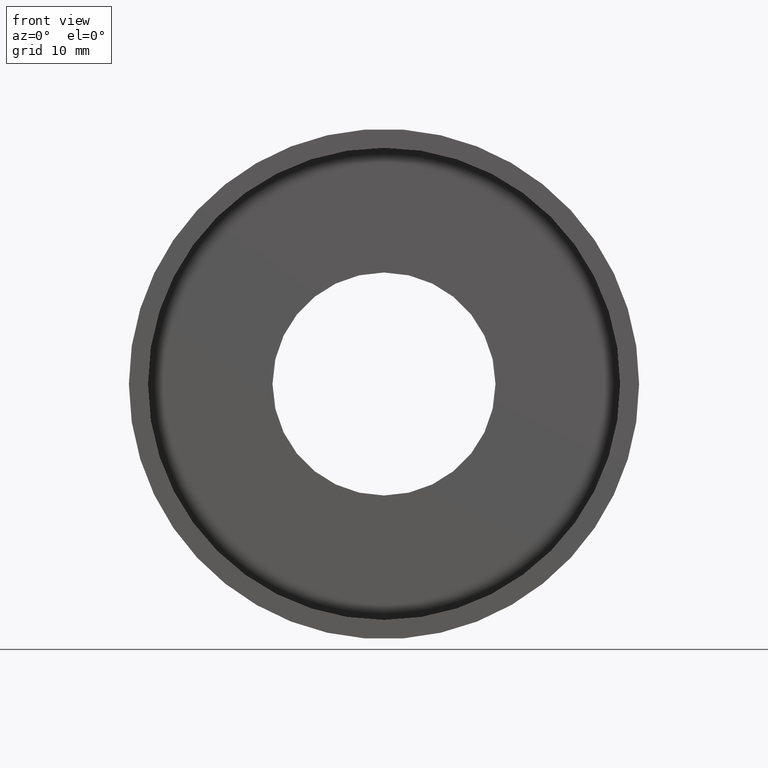
[diagram: clean part render]
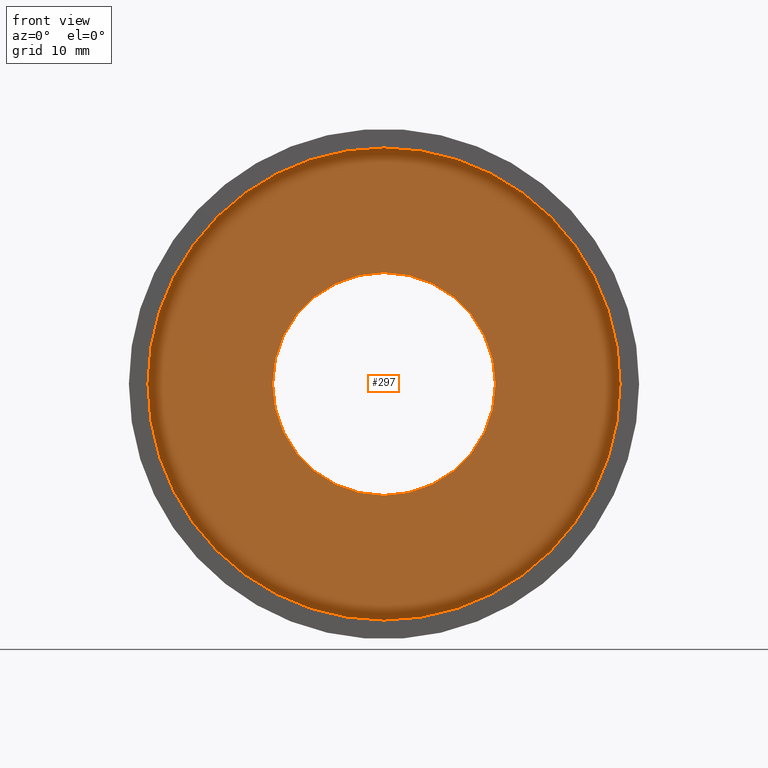
[diagram: same view with one face highlighted and labeled with its STEP entity id]
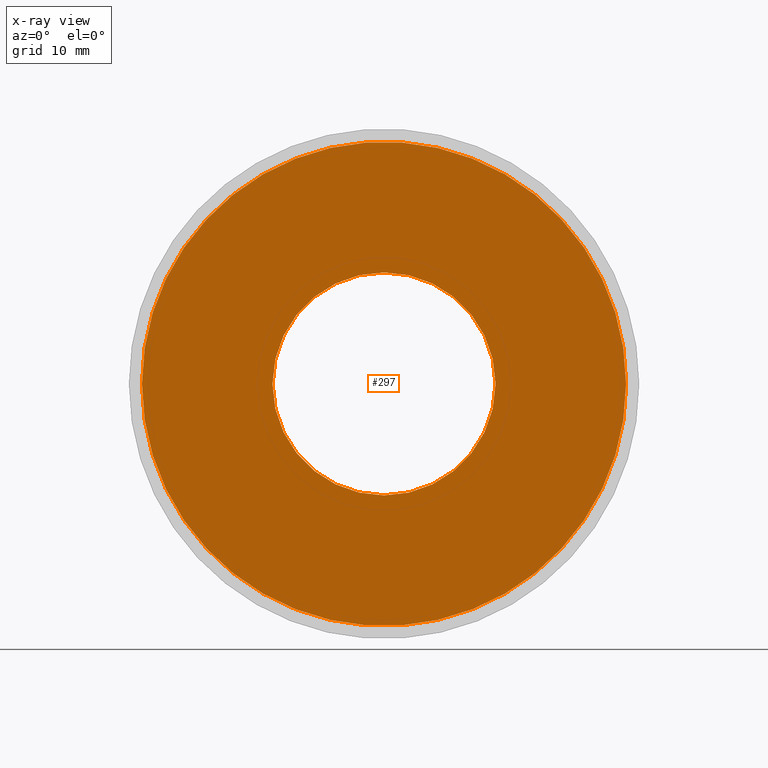
[diagram: x-ray of the same camera — body ghosted, the highlighted face saturated]
A machine part, front view. The second image highlights one B-rep face of the part: STEP entity #297.
The next image is the same camera in x-ray: the body ghosted, the highlighted face saturated — about 0% of this face is hidden behind the body in this view.
In plain terms, the highlighted planar face has unit normal (-0, 1, 0).
Its self-contained STEP definition (entity closure, byte-faithful):
#4 = ORIENTED_EDGE ( 'NONE', *, *, #577, .F. ) ;
#35 = DIRECTION ( 'NONE',  ( -1.224646799147351000E-016, 1.000000000000000000, 0.0000000000000000000 ) ) ;
#39 = FACE_OUTER_BOUND ( 'NONE', #516, .T. ) ;
#43 = CARTESIAN_POINT ( 'NONE',  ( 11.10000000000000100, 6.499999999999998200, 0.0000000000000000000 ) ) ;
#49 = EDGE_LOOP ( 'NONE', ( #266, #64 ) ) ;
#52 = AXIS2_PLACEMENT_3D ( 'NONE', #256, #228, #608 ) ;
#64 = ORIENTED_EDGE ( 'NONE', *, *, #479, .T. ) ;
#69 = AXIS2_PLACEMENT_3D ( 'NONE', #528, #523, #478 ) ;
#71 = VERTEX_POINT ( 'NONE', #610 ) ;
#103 = CIRCLE ( 'NONE', #116, 24.10000000000000100 ) ;
#116 = AXIS2_PLACEMENT_3D ( 'NONE', #166, #212, #561 ) ;
#148 = PLANE ( 'NONE',  #292 ) ;
#159 = FACE_BOUND ( 'NONE', #49, .T. ) ;
#166 = CARTESIAN_POINT ( 'NONE',  ( 1.271920398992858200E-015, 6.499999999999995600, 0.0000000000000000000 ) ) ;
#168 = DIRECTION ( 'NONE',  ( -1.224646799147351000E-016, 1.000000000000000000, -0.0000000000000000000 ) ) ;
#169 = AXIS2_PLACEMENT_3D ( 'NONE', #563, #168, #599 ) ;
#193 = DIRECTION ( 'NONE',  ( -1.000000000000000000, -1.224646799147351000E-016, 0.0000000000000000000 ) ) ;
#204 = VERTEX_POINT ( 'NONE', #295 ) ;
#212 = DIRECTION ( 'NONE',  ( -1.224646799147351000E-016, 1.000000000000000000, -0.0000000000000000000 ) ) ;
#228 = DIRECTION ( 'NONE',  ( -1.224646799147351000E-016, 1.000000000000000000, -0.0000000000000000000 ) ) ;
#236 = VERTEX_POINT ( 'NONE', #402 ) ;
#251 = ORIENTED_EDGE ( 'NONE', *, *, #508, .F. ) ;
#256 = CARTESIAN_POINT ( 'NONE',  ( 1.271920398992858200E-015, 6.499999999999995600, 0.0000000000000000000 ) ) ;
#266 = ORIENTED_EDGE ( 'NONE', *, *, #553, .T. ) ;
#270 = CIRCLE ( 'NONE', #169, 11.10000000000000000 ) ;
#292 = AXIS2_PLACEMENT_3D ( 'NONE', #43, #35, #193 ) ;
#295 = CARTESIAN_POINT ( 'NONE',  ( 11.10000000000000100, 6.499999999999999100, 1.359357947053562400E-015 ) ) ;
#297 = ADVANCED_FACE ( 'NONE', ( #39, #159 ), #148, .F. ) ;
#402 = CARTESIAN_POINT ( 'NONE',  ( 24.10000000000000100, 6.499999999999998200, 2.951398785945121300E-015 ) ) ;
#414 = CIRCLE ( 'NONE', #52, 24.10000000000000100 ) ;
#478 = DIRECTION ( 'NONE',  ( -1.000000000000000000, -1.562813942321447800E-016, 0.0000000000000000000 ) ) ;
#479 = EDGE_CURVE ( 'NONE', #204, #511, #270, .T. ) ;
#508 = EDGE_CURVE ( 'NONE', #71, #236, #103, .T. ) ;
#511 = VERTEX_POINT ( 'NONE', #593 ) ;
#516 = EDGE_LOOP ( 'NONE', ( #251, #4 ) ) ;
#523 = DIRECTION ( 'NONE',  ( -1.224646799147351000E-016, 1.000000000000000000, -0.0000000000000000000 ) ) ;
#528 = CARTESIAN_POINT ( 'NONE',  ( 1.271920398992858000E-015, 6.499999999999997300, 0.0000000000000000000 ) ) ;
#539 = CIRCLE ( 'NONE', #69, 11.10000000000000000 ) ;
#553 = EDGE_CURVE ( 'NONE', #511, #204, #539, .T. ) ;
#561 = DIRECTION ( 'NONE',  ( -1.000000000000000000, -1.079703408284319800E-016, 0.0000000000000000000 ) ) ;
#563 = CARTESIAN_POINT ( 'NONE',  ( 1.271920398992858000E-015, 6.499999999999997300, 0.0000000000000000000 ) ) ;
#577 = EDGE_CURVE ( 'NONE', #236, #71, #414, .T. ) ;
#593 = CARTESIAN_POINT ( 'NONE',  ( -11.09999999999999800, 6.499999999999995600, 0.0000000000000000000 ) ) ;
#599 = DIRECTION ( 'NONE',  ( -1.000000000000000000, -1.562813942321447800E-016, 0.0000000000000000000 ) ) ;
#608 = DIRECTION ( 'NONE',  ( -1.000000000000000000, -1.079703408284319800E-016, 0.0000000000000000000 ) ) ;
#610 = CARTESIAN_POINT ( 'NONE',  ( -24.10000000000000100, 6.499999999999992900, 0.0000000000000000000 ) ) ;